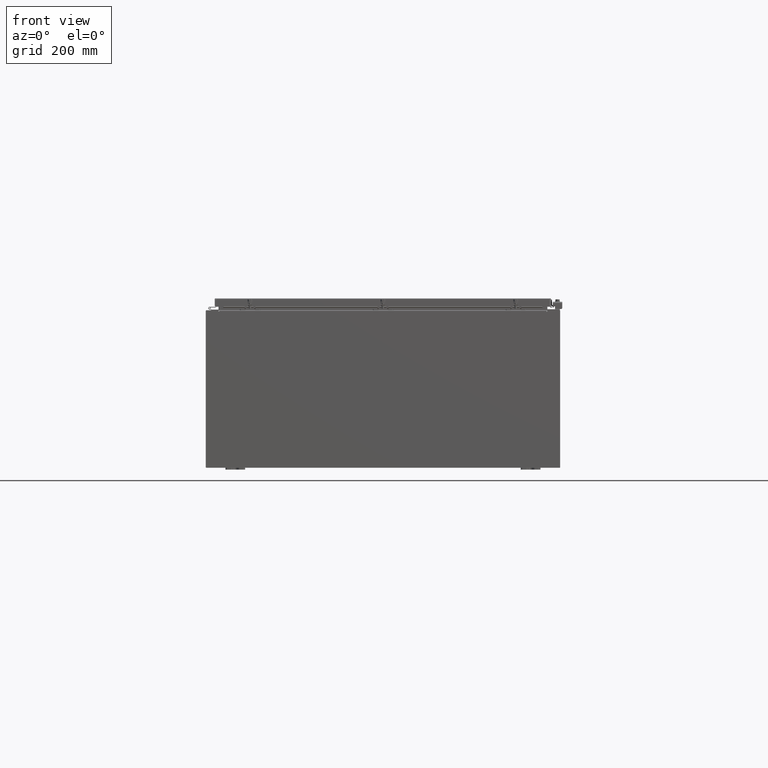
[diagram: clean part render]
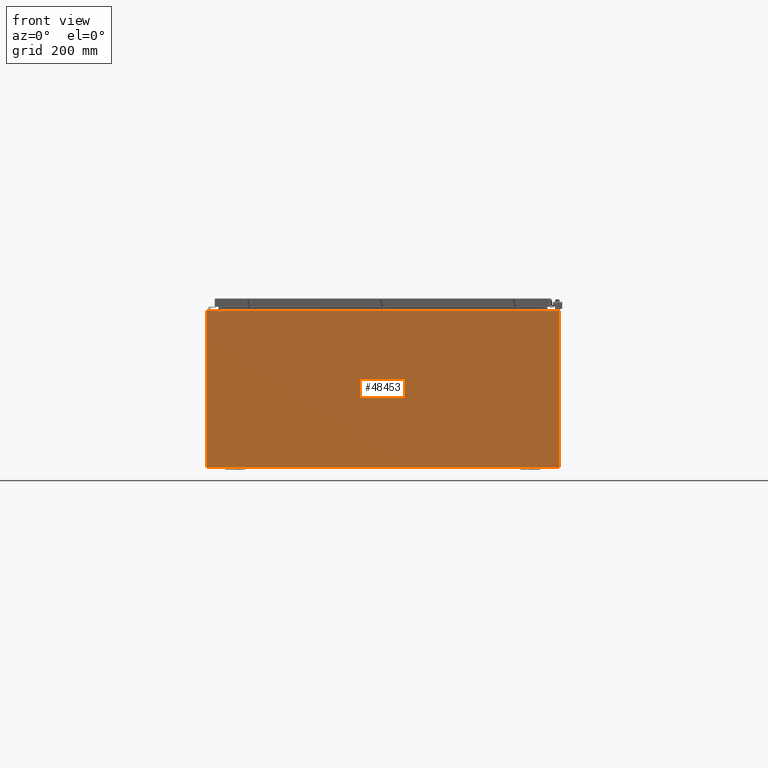
[diagram: same view with one face highlighted and labeled with its STEP entity id]
A machine part, front view. The second image highlights one B-rep face of the part: STEP entity #48453.
In plain terms, the highlighted planar face has unit normal (-0, 1, -0).
Its self-contained STEP definition (entity closure, byte-faithful):
#244 = CARTESIAN_POINT ( 'NONE',  ( 16.63720000000000400, 0.0000000000000000000, 7.912300000000001900 ) ) ;
#1228 = CARTESIAN_POINT ( 'NONE',  ( -17.92530000000000000, 0.0000000000000000000, 7.925300000000001800 ) ) ;
#1247 = ORIENTED_EDGE ( 'NONE', *, *, #4917, .T. ) ;
#2403 = CARTESIAN_POINT ( 'NONE',  ( 16.67454999999931800, -0.0000000000000000000, -1.447541957108381700E-012 ) ) ;
#2685 = VECTOR ( 'NONE', #9314, 39.37007874015748100 ) ;
#3040 = VECTOR ( 'NONE', #37692, 39.37007874015748100 ) ;
#3120 = ORIENTED_EDGE ( 'NONE', *, *, #35362, .F. ) ;
#3267 = LINE ( 'NONE', #1228, #53477 ) ;
#4917 = EDGE_CURVE ( 'NONE', #12156, #57118, #28560, .T. ) ;
#6240 = VERTEX_POINT ( 'NONE', #55015 ) ;
#7671 = ORIENTED_EDGE ( 'NONE', *, *, #14964, .T. ) ;
#7795 = CARTESIAN_POINT ( 'NONE',  ( 0.0000000000000000000, 0.0000000000000000000, 0.0000000000000000000 ) ) ;
#7813 = VECTOR ( 'NONE', #60191, 39.37007874015748100 ) ;
#9106 = CARTESIAN_POINT ( 'NONE',  ( 17.92530000000000000, 0.0000000000000000000, 7.925300000000000000 ) ) ;
#9314 = DIRECTION ( 'NONE',  ( 0.0000000000000000000, 0.0000000000000000000, -1.000000000000000000 ) ) ;
#10423 = CARTESIAN_POINT ( 'NONE',  ( -17.92530000000000000, 0.0000000000000000000, 7.925300000000001800 ) ) ;
#10463 = CARTESIAN_POINT ( 'NONE',  ( 17.92530000000000000, 0.0000000000000000000, -7.925299999999997300 ) ) ;
#10492 = DIRECTION ( 'NONE',  ( -0.0000000000000000000, 1.000000000000000000, -0.0000000000000000000 ) ) ;
#10662 = EDGE_CURVE ( 'NONE', #59969, #14056, #42377, .T. ) ;
#11195 = VECTOR ( 'NONE', #11906, 39.37007874015748100 ) ;
#11906 = DIRECTION ( 'NONE',  ( 0.0000000000000000000, 0.0000000000000000000, 1.000000000000000000 ) ) ;
#12156 = VERTEX_POINT ( 'NONE', #17345 ) ;
#12185 = DIRECTION ( 'NONE',  ( -8.681145560800387200E-014, 0.0000000000000000000, -1.000000000000000000 ) ) ;
#12618 = EDGE_CURVE ( 'NONE', #57118, #60765, #38236, .T. ) ;
#12654 = DIRECTION ( 'NONE',  ( 0.0000000000000000000, -0.0000000000000000000, -1.000000000000000000 ) ) ;
#12790 = VECTOR ( 'NONE', #33358, 39.37007874015748100 ) ;
#12961 = CARTESIAN_POINT ( 'NONE',  ( -16.63720000000000400, -0.0000000000000000000, 0.0000000000000000000 ) ) ;
#14056 = VERTEX_POINT ( 'NONE', #49604 ) ;
#14525 = LINE ( 'NONE', #62212, #24410 ) ;
#14964 = EDGE_CURVE ( 'NONE', #59969, #12156, #53113, .T. ) ;
#16400 = VERTEX_POINT ( 'NONE', #26491 ) ;
#16502 = ORIENTED_EDGE ( 'NONE', *, *, #12618, .T. ) ;
#16510 = DIRECTION ( 'NONE',  ( -0.0000000000000000000, 1.000000000000000000, -0.0000000000000000000 ) ) ;
#16810 = ORIENTED_EDGE ( 'NONE', *, *, #10662, .F. ) ;
#17345 = CARTESIAN_POINT ( 'NONE',  ( 17.92530000000000000, 0.0000000000000000000, 7.925300000000000000 ) ) ;
#17873 = LINE ( 'NONE', #12961, #29305 ) ;
#17917 = EDGE_LOOP ( 'NONE', ( #58668, #51932, #28683, #21908, #3120, #24750, #16810, #7671, #1247, #16502, #31450, #40013 ) ) ;
#20359 = CIRCLE ( 'NONE', #31525, 0.01867499999999949400 ) ;
#20603 = EDGE_CURVE ( 'NONE', #16400, #38171, #32649, .T. ) ;
#21270 = VECTOR ( 'NONE', #23894, 39.37007874015748100 ) ;
#21908 = ORIENTED_EDGE ( 'NONE', *, *, #56871, .T. ) ;
#23246 = EDGE_CURVE ( 'NONE', #14056, #43466, #27004, .T. ) ;
#23331 = DIRECTION ( 'NONE',  ( 1.000000000000000000, 0.0000000000000000000, -6.096072018129154100E-017 ) ) ;
#23894 = DIRECTION ( 'NONE',  ( 0.0000000000000000000, 0.0000000000000000000, 1.000000000000000000 ) ) ;
#24261 = EDGE_CURVE ( 'NONE', #60451, #38171, #14525, .T. ) ;
#24410 = VECTOR ( 'NONE', #23331, 39.37007874015748100 ) ;
#24750 = ORIENTED_EDGE ( 'NONE', *, *, #23246, .F. ) ;
#26016 = CARTESIAN_POINT ( 'NONE',  ( -17.92530000000000000, 0.0000000000000000000, -7.925299999999997300 ) ) ;
#26491 = CARTESIAN_POINT ( 'NONE',  ( -16.67455000000000000, 0.0000000000000000000, 7.874950000000001900 ) ) ;
#27004 = CIRCLE ( 'NONE', #61088, 0.01867499999999949400 ) ;
#27017 = FACE_OUTER_BOUND ( 'NONE', #17917, .T. ) ;
#27674 = DIRECTION ( 'NONE',  ( 0.0000000000000000000, 0.0000000000000000000, -1.000000000000000000 ) ) ;
#27758 = EDGE_CURVE ( 'NONE', #58260, #6240, #17873, .T. ) ;
#28560 = LINE ( 'NONE', #9106, #2685 ) ;
#28683 = ORIENTED_EDGE ( 'NONE', *, *, #27758, .F. ) ;
#29305 = VECTOR ( 'NONE', #27674, 39.37007874015748100 ) ;
#29440 = VECTOR ( 'NONE', #12185, 39.37007874015748100 ) ;
#31450 = ORIENTED_EDGE ( 'NONE', *, *, #60517, .T. ) ;
#31525 = AXIS2_PLACEMENT_3D ( 'NONE', #39645, #10492, #44488 ) ;
#32649 = LINE ( 'NONE', #57892, #21270 ) ;
#33015 = CARTESIAN_POINT ( 'NONE',  ( -16.63720000000000400, -2.356218894535426900E-015, 7.912300000000008100 ) ) ;
#33358 = DIRECTION ( 'NONE',  ( 1.000000000000000000, 0.0000000000000000000, -6.096072018129154100E-017 ) ) ;
#35362 = EDGE_CURVE ( 'NONE', #43466, #45599, #62898, .T. ) ;
#37171 = CARTESIAN_POINT ( 'NONE',  ( -17.92530000000000000, 0.0000000000000000000, -7.925299999999997300 ) ) ;
#37692 = DIRECTION ( 'NONE',  ( 1.000000000000000000, 0.0000000000000000000, 0.0000000000000000000 ) ) ;
#38171 = VERTEX_POINT ( 'NONE', #38658 ) ;
#38236 = LINE ( 'NONE', #26016, #7813 ) ;
#38240 = CARTESIAN_POINT ( 'NONE',  ( -17.92530000000000000, 0.0000000000000000000, 7.925300000000001800 ) ) ;
#38658 = CARTESIAN_POINT ( 'NONE',  ( -16.67455000000000000, 0.0000000000000000000, 7.925300000000001800 ) ) ;
#39645 = CARTESIAN_POINT ( 'NONE',  ( -16.65587500000000200, 0.0000000000000000000, 7.874950000000001900 ) ) ;
#40013 = ORIENTED_EDGE ( 'NONE', *, *, #24261, .T. ) ;
#40356 = LINE ( 'NONE', #33015, #3040 ) ;
#41066 = CARTESIAN_POINT ( 'NONE',  ( 16.63720000000000400, 0.0000000000000000000, 0.0000000000000000000 ) ) ;
#41794 = AXIS2_PLACEMENT_3D ( 'NONE', #7795, #41824, #12654 ) ;
#41824 = DIRECTION ( 'NONE',  ( 0.0000000000000000000, -1.000000000000000000, 0.0000000000000000000 ) ) ;
#42377 = LINE ( 'NONE', #2403, #29440 ) ;
#43466 = VERTEX_POINT ( 'NONE', #59808 ) ;
#44488 = DIRECTION ( 'NONE',  ( 0.0000000000000000000, 0.0000000000000000000, -1.000000000000000000 ) ) ;
#45059 = DIRECTION ( 'NONE',  ( -0.0000000000000000000, -0.0000000000000000000, 1.000000000000000000 ) ) ;
#45599 = VERTEX_POINT ( 'NONE', #244 ) ;
#45626 = CARTESIAN_POINT ( 'NONE',  ( 16.65587500000000200, 0.0000000000000000000, 7.874950000000001900 ) ) ;
#46977 = EDGE_CURVE ( 'NONE', #6240, #16400, #20359, .T. ) ;
#48453 = ADVANCED_FACE ( 'NONE', ( #27017 ), #61136, .F. ) ;
#49604 = CARTESIAN_POINT ( 'NONE',  ( 16.67455000000000000, 0.0000000000000000000, 7.874950000000001900 ) ) ;
#50503 = DIRECTION ( 'NONE',  ( 0.0000000000000000000, 0.0000000000000000000, -1.000000000000000000 ) ) ;
#51932 = ORIENTED_EDGE ( 'NONE', *, *, #46977, .F. ) ;
#53113 = LINE ( 'NONE', #38240, #12790 ) ;
#53477 = VECTOR ( 'NONE', #45059, 39.37007874015748100 ) ;
#55015 = CARTESIAN_POINT ( 'NONE',  ( -16.63720000000000400, -0.0000000000000000000, 7.874950000000001900 ) ) ;
#56871 = EDGE_CURVE ( 'NONE', #58260, #45599, #40356, .T. ) ;
#57118 = VERTEX_POINT ( 'NONE', #10463 ) ;
#57771 = CARTESIAN_POINT ( 'NONE',  ( 16.67455000000000700, 0.0000000000000000000, 7.925300000000000000 ) ) ;
#57892 = CARTESIAN_POINT ( 'NONE',  ( -16.67455000000000000, -0.0000000000000000000, 0.0000000000000000000 ) ) ;
#58260 = VERTEX_POINT ( 'NONE', #59028 ) ;
#58668 = ORIENTED_EDGE ( 'NONE', *, *, #20603, .F. ) ;
#59028 = CARTESIAN_POINT ( 'NONE',  ( -16.63720000000000400, -2.356218894535426900E-015, 7.912300000000008100 ) ) ;
#59808 = CARTESIAN_POINT ( 'NONE',  ( 16.63720000000000400, 0.0000000000000000000, 7.874950000000001900 ) ) ;
#59969 = VERTEX_POINT ( 'NONE', #57771 ) ;
#60191 = DIRECTION ( 'NONE',  ( -1.000000000000000000, -0.0000000000000000000, -0.0000000000000000000 ) ) ;
#60451 = VERTEX_POINT ( 'NONE', #10423 ) ;
#60517 = EDGE_CURVE ( 'NONE', #60765, #60451, #3267, .T. ) ;
#60765 = VERTEX_POINT ( 'NONE', #37171 ) ;
#61088 = AXIS2_PLACEMENT_3D ( 'NONE', #45626, #16510, #50503 ) ;
#61136 = PLANE ( 'NONE',  #41794 ) ;
#62212 = CARTESIAN_POINT ( 'NONE',  ( -17.92530000000000000, 0.0000000000000000000, 7.925300000000001800 ) ) ;
#62898 = LINE ( 'NONE', #41066, #11195 ) ;